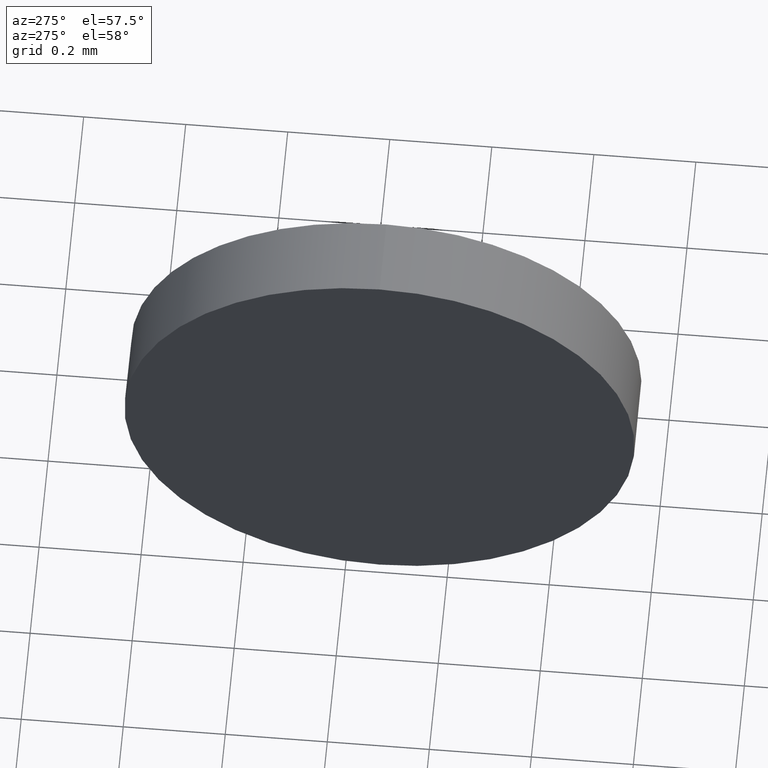
[diagram: clean part render]
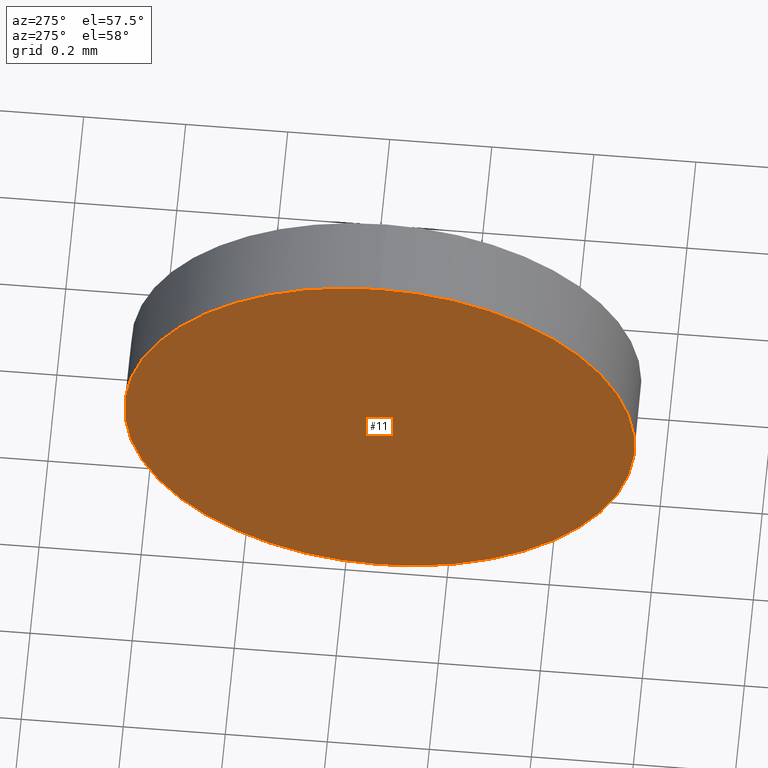
[diagram: same view with one face highlighted and labeled with its STEP entity id]
A machine part, auxiliary view. The second image highlights one B-rep face of the part: STEP entity #11.
In plain terms, the highlighted planar face has unit normal (1, 0, 0).
Its self-contained STEP definition (entity closure, byte-faithful):
#2 = VERTEX_POINT ( 'NONE', #139 ) ;
#7 = CARTESIAN_POINT ( 'NONE',  ( 51.20413832527503900, 12.93295623006154200, -0.5000000000000004400 ) ) ;
#11 = ADVANCED_FACE ( 'NONE', ( #104 ), #96, .F. ) ;
#13 = DIRECTION ( 'NONE',  ( -1.000000000000000000, -0.0000000000000000000, -0.0000000000000000000 ) ) ;
#16 = DIRECTION ( 'NONE',  ( 0.0000000000000000000, 0.0000000000000000000, 1.000000000000000000 ) ) ;
#21 = VERTEX_POINT ( 'NONE', #7 ) ;
#27 = DIRECTION ( 'NONE',  ( -1.000000000000000000, -0.0000000000000000000, -0.0000000000000000000 ) ) ;
#39 = EDGE_CURVE ( 'NONE', #2, #21, #58, .T. ) ;
#40 = EDGE_LOOP ( 'NONE', ( #156, #169 ) ) ;
#51 = CIRCLE ( 'NONE', #121, 0.5000000000000004400 ) ;
#58 = CIRCLE ( 'NONE', #91, 0.5000000000000004400 ) ;
#79 = AXIS2_PLACEMENT_3D ( 'NONE', #164, #81, #150 ) ;
#81 = DIRECTION ( 'NONE',  ( 1.000000000000000000, 0.0000000000000000000, 0.0000000000000000000 ) ) ;
#91 = AXIS2_PLACEMENT_3D ( 'NONE', #98, #13, #16 ) ;
#95 = DIRECTION ( 'NONE',  ( 0.0000000000000000000, 0.0000000000000000000, 1.000000000000000000 ) ) ;
#96 = PLANE ( 'NONE',  #79 ) ;
#98 = CARTESIAN_POINT ( 'NONE',  ( 51.20413832527503900, 12.93295623006154200, 0.0000000000000000000 ) ) ;
#104 = FACE_OUTER_BOUND ( 'NONE', #40, .T. ) ;
#121 = AXIS2_PLACEMENT_3D ( 'NONE', #141, #27, #95 ) ;
#139 = CARTESIAN_POINT ( 'NONE',  ( 51.20413832527503900, 12.93295623006154200, 0.5000000000000004400 ) ) ;
#141 = CARTESIAN_POINT ( 'NONE',  ( 51.20413832527503900, 12.93295623006154200, 0.0000000000000000000 ) ) ;
#145 = EDGE_CURVE ( 'NONE', #21, #2, #51, .T. ) ;
#150 = DIRECTION ( 'NONE',  ( 0.0000000000000000000, 0.0000000000000000000, -1.000000000000000000 ) ) ;
#156 = ORIENTED_EDGE ( 'NONE', *, *, #39, .T. ) ;
#164 = CARTESIAN_POINT ( 'NONE',  ( 51.20413832527503900, 12.93295623006154200, 0.0000000000000000000 ) ) ;
#169 = ORIENTED_EDGE ( 'NONE', *, *, #145, .T. ) ;